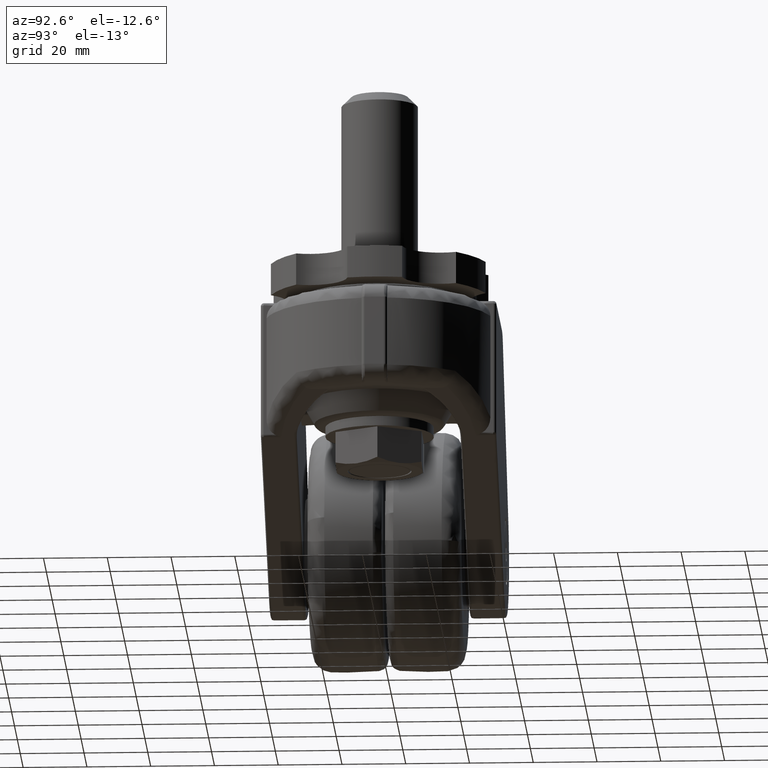
[diagram: clean part render]
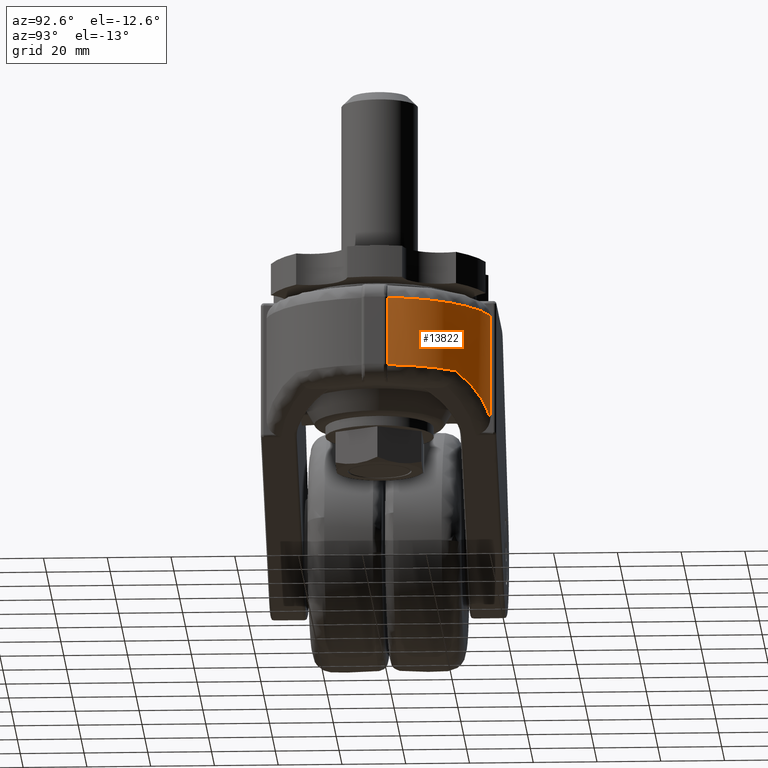
[diagram: same view with one face highlighted and labeled with its STEP entity id]
A machine part, auxiliary view. The second image highlights one B-rep face of the part: STEP entity #13822.
In plain terms, the highlighted face is a freeform B-spline surface patch.
Its self-contained STEP definition (entity closure, byte-faithful):
#8835=CARTESIAN_POINT('',(35.777087088245949,4.0,-35.500000000000000));
#8836=VERTEX_POINT('',#8835);
#8858=CARTESIAN_POINT('',(35.777087088245949,4.0,-14.0));
#8859=VERTEX_POINT('',#8858);
#8860=CARTESIAN_POINT('',(35.777087088245949,4.0,-35.500000000000000));
#8861=CARTESIAN_POINT('',(35.777087088245949,4.0,-14.0));
#8862=QUASI_UNIFORM_CURVE('',1,(#8860,#8861),.UNSPECIFIED.,.F.,.U.);
#8863=EDGE_CURVE('',#8836,#8859,#8862,.T.);
#9323=CARTESIAN_POINT('',(8.0,35.099856987172103,-46.539511530877803));
#9324=VERTEX_POINT('',#9323);
#9352=CARTESIAN_POINT('',(26.015906582127698,24.883178358681199,-35.500000000000000));
#9353=VERTEX_POINT('',#9352);
#9354=CARTESIAN_POINT('',(26.015906582127691,24.883178358681199,-35.499999999999957));
#9355=CARTESIAN_POINT('',(18.542243167269973,32.697056731633090,-40.079597094939878));
#9356=CARTESIAN_POINT('',(8.000000000000036,35.099856987172103,-46.539511530877668));
#9364=(BOUNDED_CURVE()B_SPLINE_CURVE(2,(#9354,#9355,#9356),.UNSPECIFIED.,.F.,.U.)CURVE()GEOMETRIC_REPRESENTATION_ITEM()QUASI_UNIFORM_CURVE()RATIONAL_B_SPLINE_CURVE((1.0,0.957733968646237,1.0))REPRESENTATION_ITEM(''));
#9365=EDGE_CURVE('',#9353,#9324,#9364,.T.);
#11536=CARTESIAN_POINT('',(8.0,35.099856987172103,-14.0));
#11537=VERTEX_POINT('',#11536);
#11563=CARTESIAN_POINT('',(8.0,35.099856987172103,-14.0));
#11564=CARTESIAN_POINT('',(8.0,35.099856987172103,-46.539511530877803));
#11565=QUASI_UNIFORM_CURVE('',1,(#11563,#11564),.UNSPECIFIED.,.F.,.U.);
#11566=EDGE_CURVE('',#11537,#9324,#11565,.T.);
#13766=CARTESIAN_POINT('',(35.777087088245942,3.999999999999999,-35.500000000000000));
#13767=CARTESIAN_POINT('',(34.425271801867055,16.091003306999870,-35.500000000000007));
#13768=CARTESIAN_POINT('',(26.015906582127691,24.883178358681189,-35.500000000000000));
#13776=(BOUNDED_CURVE()B_SPLINE_CURVE(2,(#13766,#13767,#13768),.UNSPECIFIED.,.F.,.U.)CURVE()GEOMETRIC_REPRESENTATION_ITEM()QUASI_UNIFORM_CURVE()RATIONAL_B_SPLINE_CURVE((1.0,0.947361935828822,1.0))REPRESENTATION_ITEM(''));
#13777=EDGE_CURVE('',#8836,#9353,#13776,.T.);
#13789=CARTESIAN_POINT('',(7.693395236526992,35.168332776156980,-47.352999319149738));
#13790=CARTESIAN_POINT('',(7.693395236526992,35.168332776156980,-13.166175017021249));
#13791=CARTESIAN_POINT('',(34.194634835362926,29.370943636630525,-47.352999319149724));
#13792=CARTESIAN_POINT('',(34.194634835362926,29.370943636630525,-13.166175017021247));
#13793=CARTESIAN_POINT('',(35.926558327983223,2.298340102324509,-47.352999319149738));
#13794=CARTESIAN_POINT('',(35.926558327983223,2.298340102324509,-13.166175017021249));
#13802=(BOUNDED_SURFACE()B_SPLINE_SURFACE(1,2,((#13789,#13791,#13793),(#13790,#13792,#13794)),.UNSPECIFIED.,.F.,.F.,.U.)B_SPLINE_SURFACE_WITH_KNOTS((2,2),(3,3),(0.0,34.186824302128493),(0.0,48.181725274418220),.UNSPECIFIED.)GEOMETRIC_REPRESENTATION_ITEM()RATIONAL_B_SPLINE_SURFACE(((1.0,0.798635510047293,1.0),(1.0,0.798635510047293,1.0)))REPRESENTATION_ITEM('')SURFACE());
#13803=ORIENTED_EDGE('',*,*,#8863,.F.);
#13804=ORIENTED_EDGE('',*,*,#13777,.T.);
#13805=ORIENTED_EDGE('',*,*,#9365,.T.);
#13806=ORIENTED_EDGE('',*,*,#11566,.F.);
#13807=CARTESIAN_POINT('',(8.000000000000004,35.099856987172103,-14.0));
#13808=CARTESIAN_POINT('',(32.935430956627961,29.416544723936131,-13.999999999999998));
#13809=CARTESIAN_POINT('',(35.777087088245942,4.000000000000003,-14.0));
#13817=(BOUNDED_CURVE()B_SPLINE_CURVE(2,(#13807,#13808,#13809),.UNSPECIFIED.,.F.,.U.)CURVE()GEOMETRIC_REPRESENTATION_ITEM()QUASI_UNIFORM_CURVE()RATIONAL_B_SPLINE_CURVE((1.0,0.815223625319340,1.0))REPRESENTATION_ITEM(''));
#13818=EDGE_CURVE('',#11537,#8859,#13817,.T.);
#13819=ORIENTED_EDGE('',*,*,#13818,.T.);
#13820=EDGE_LOOP('',(#13803,#13804,#13805,#13806,#13819));
#13821=FACE_OUTER_BOUND('',#13820,.T.);
#13822=ADVANCED_FACE('',(#13821),#13802,.T.);